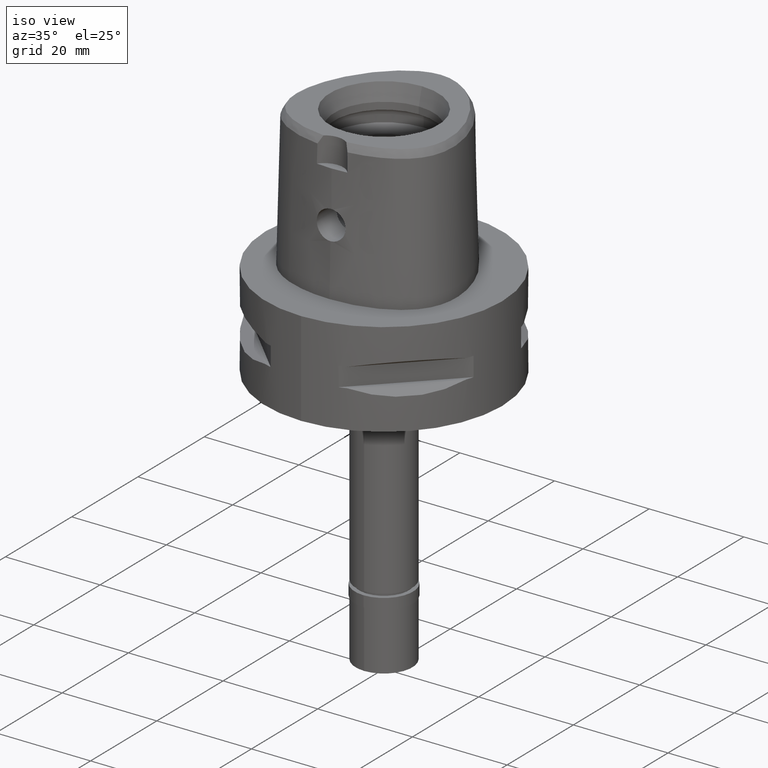
[diagram: clean part render]
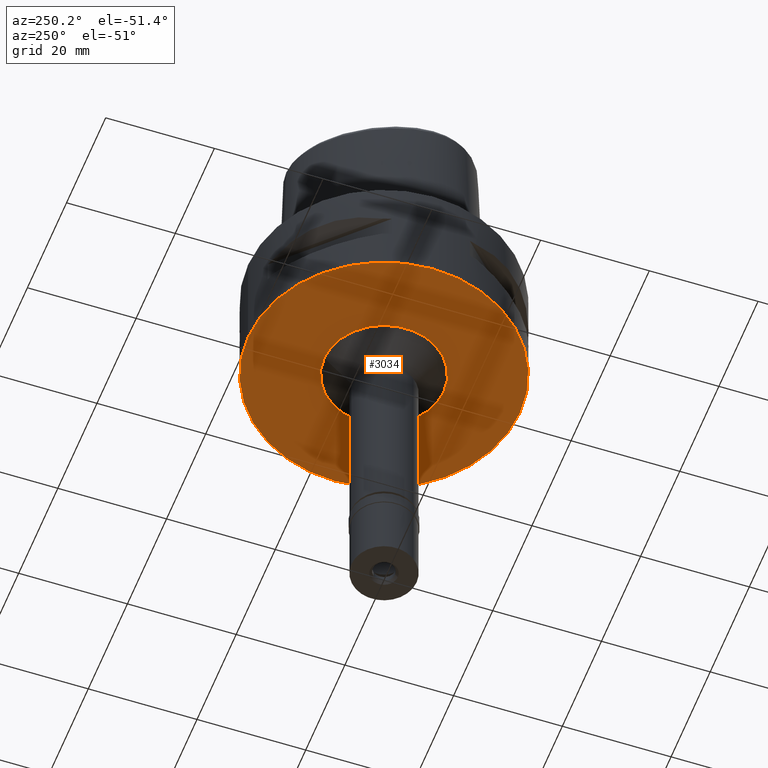
[diagram: tour spotlight — one face highlighted and labeled with its STEP entity id]
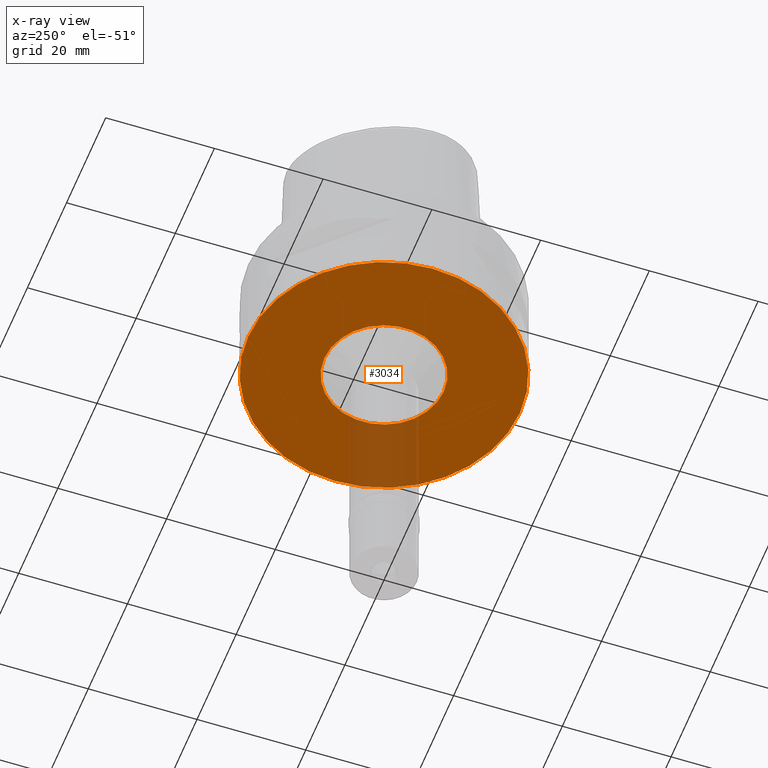
[diagram: x-ray of the same camera — body ghosted, this tour face saturated]
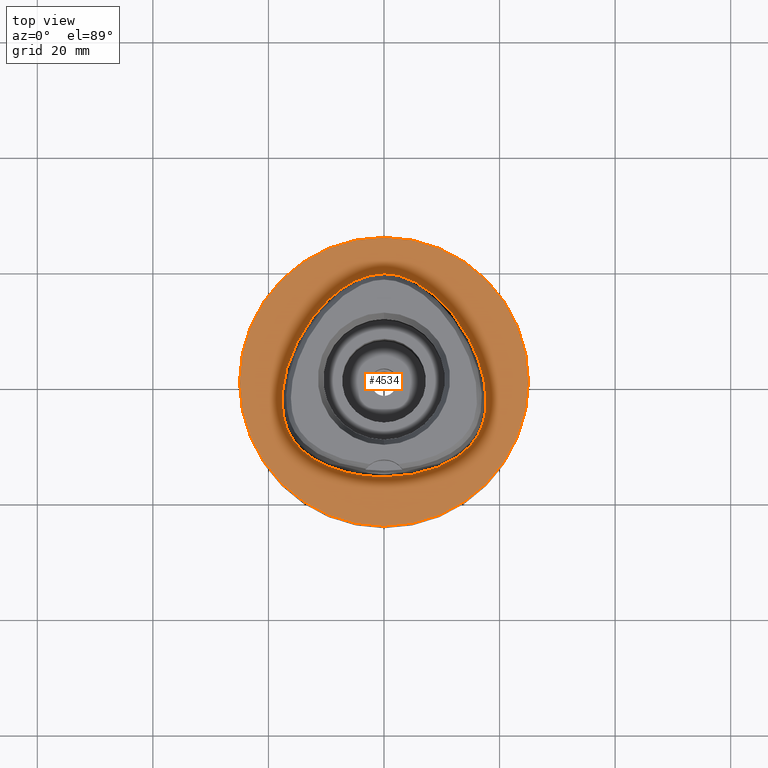
[diagram: tour spotlight — one face highlighted and labeled with its STEP entity id]
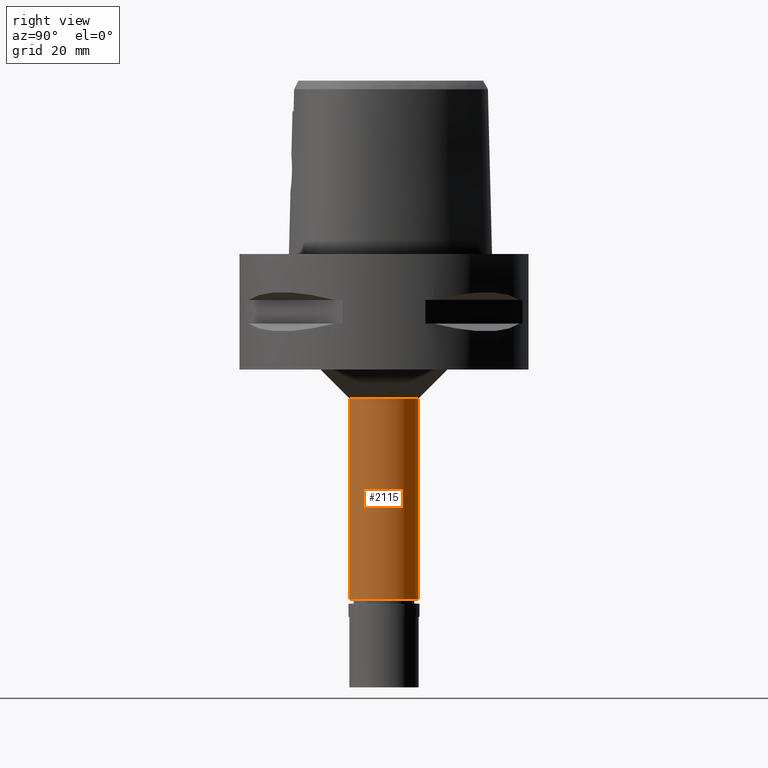
[diagram: tour spotlight — one face highlighted and labeled with its STEP entity id]
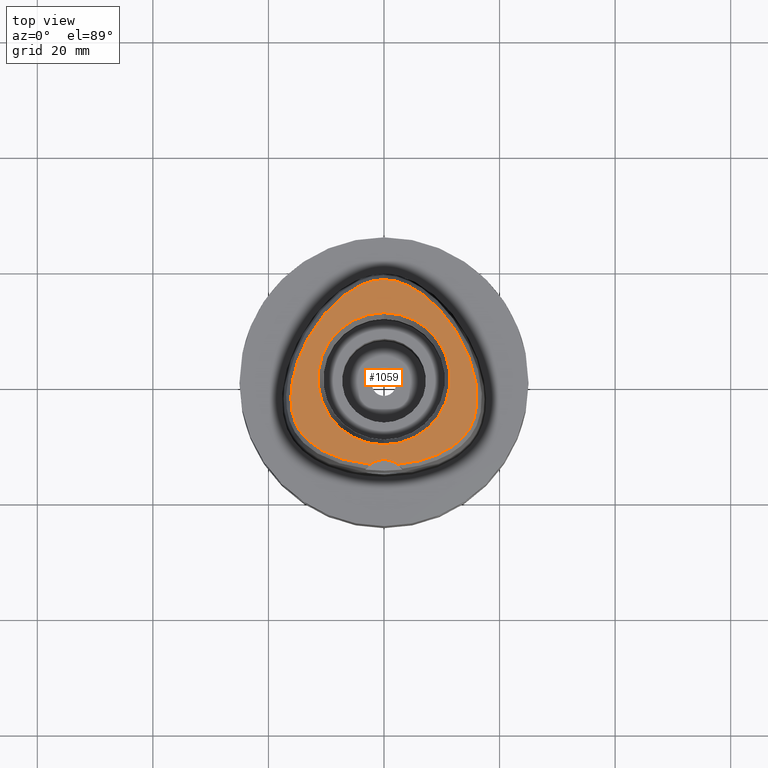
[diagram: tour spotlight — one face highlighted and labeled with its STEP entity id]
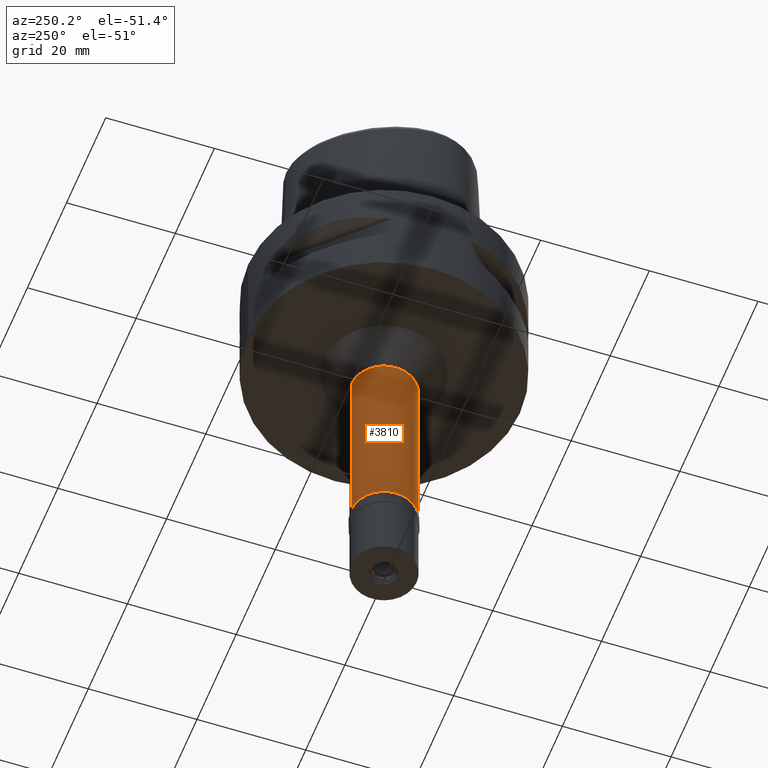
[diagram: tour spotlight — one face highlighted and labeled with its STEP entity id]
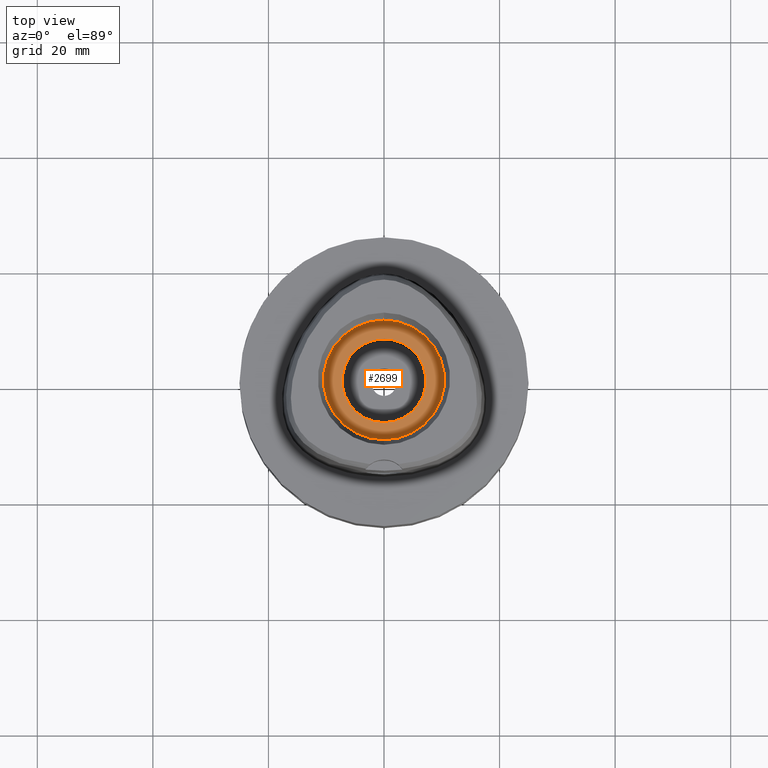
[diagram: tour spotlight — one face highlighted and labeled with its STEP entity id]
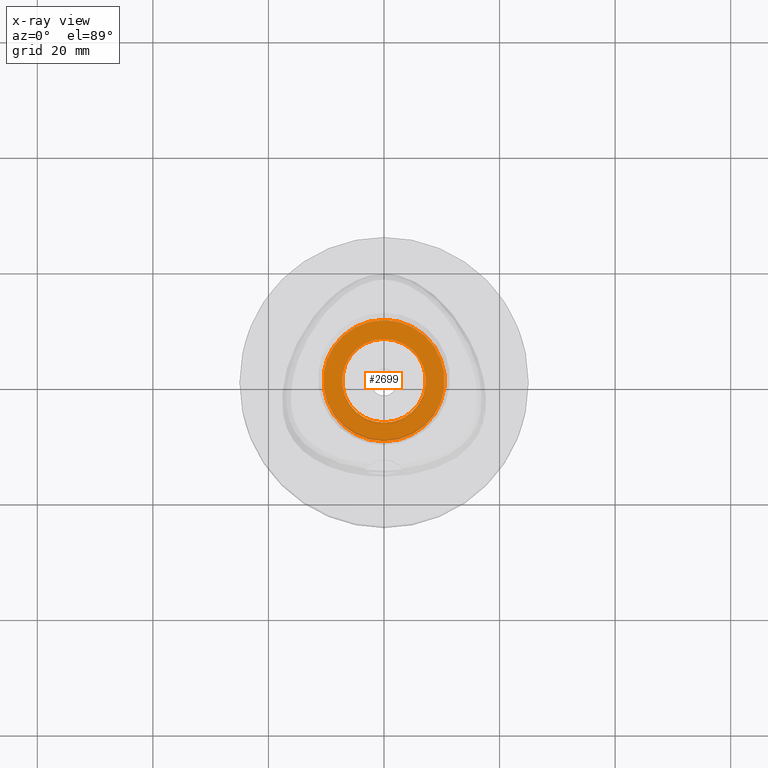
[diagram: x-ray of the same camera — body ghosted, this tour face saturated]
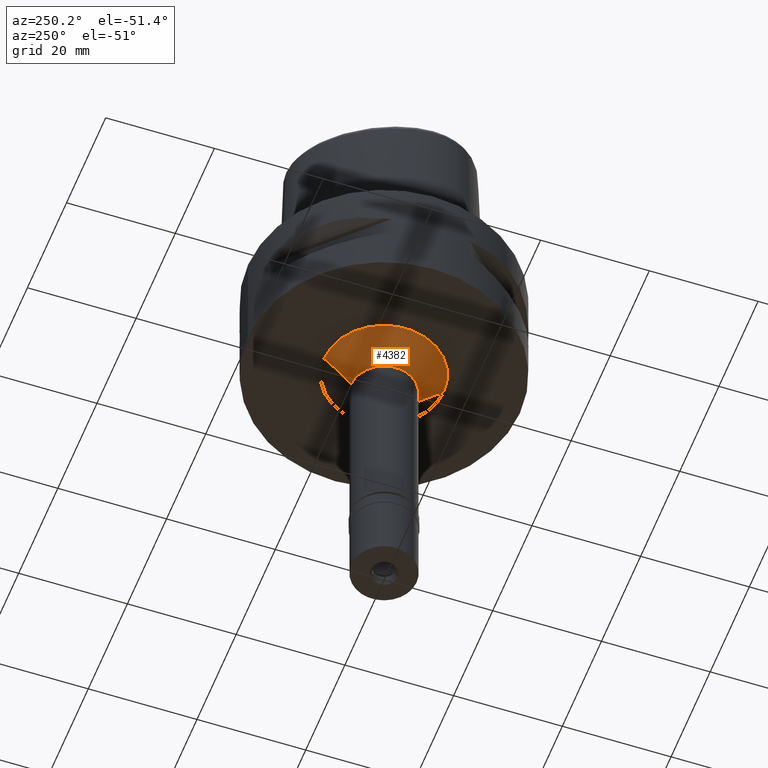
[diagram: tour spotlight — one face highlighted and labeled with its STEP entity id]
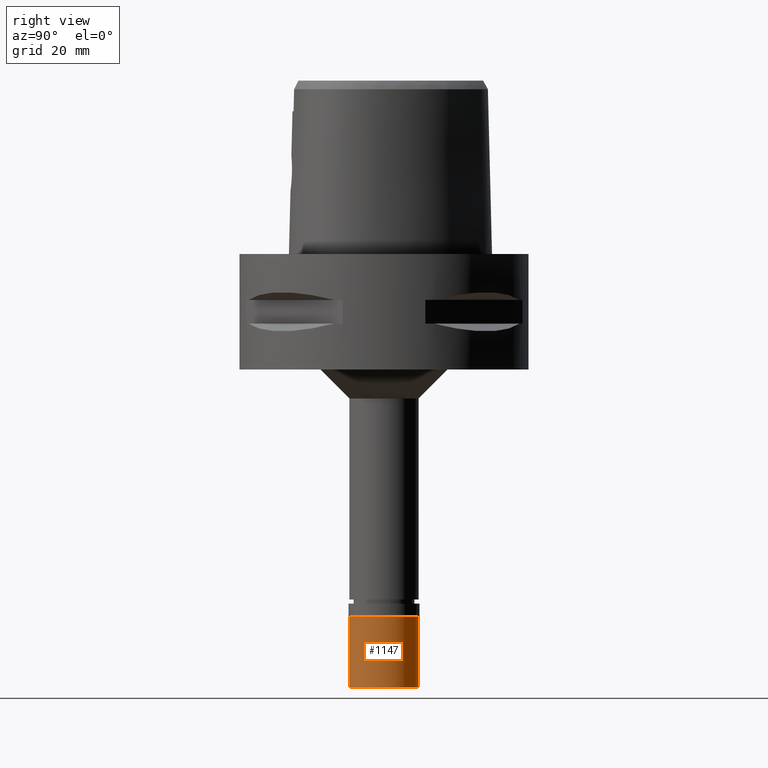
[diagram: tour spotlight — one face highlighted and labeled with its STEP entity id]
A machine part: a face-by-face anatomy tour. The part has 93 B-rep faces; the first image is the clean iso view, then the 8 largest visible faces are spotlighted one at a time (largest first), each with its STEP entity span.

Face 1 — auxiliary view, entity #3034. An x-ray twin of the same camera follows (body ghosted, this face saturated) — the face is partly hidden behind the body. In plain terms, the highlighted planar face has unit normal (0, 0, -1).
Definition (entity closure, byte-faithful):
#127 = CIRCLE ( 'NONE', #1535, 11.00000000000000000 ) ;
#130 = EDGE_LOOP ( 'NONE', ( #605, #3214 ) ) ;
#158 = EDGE_CURVE ( 'NONE', #4801, #262, #821, .T. ) ;
#262 = VERTEX_POINT ( 'NONE', #857 ) ;
#336 = AXIS2_PLACEMENT_3D ( 'NONE', #1143, #2578, #1123 ) ;
#345 = DIRECTION ( 'NONE',  ( 0.0000000000000000000, 0.0000000000000000000, 1.000000000000000000 ) ) ;
#378 = EDGE_CURVE ( 'NONE', #482, #3991, #127, .T. ) ;
#482 = VERTEX_POINT ( 'NONE', #4259 ) ;
#503 = FACE_BOUND ( 'NONE', #130, .T. ) ;
#530 = PLANE ( 'NONE',  #1823 ) ;
#605 = ORIENTED_EDGE ( 'NONE', *, *, #378, .F. ) ;
#821 = CIRCLE ( 'NONE', #1863, 25.00000000000000000 ) ;
#857 = CARTESIAN_POINT ( 'NONE',  ( 0.0000000000000000000, -25.00000000000000000, -20.00000000000000000 ) ) ;
#912 = DIRECTION ( 'NONE',  ( 0.0000000000000000000, 0.0000000000000000000, -1.000000000000000000 ) ) ;
#1063 = CIRCLE ( 'NONE', #1215, 25.00000000000000000 ) ;
#1123 = DIRECTION ( 'NONE',  ( 0.0000000000000000000, -1.000000000000000000, 0.0000000000000000000 ) ) ;
#1143 = CARTESIAN_POINT ( 'NONE',  ( 0.0000000000000000000, 0.0000000000000000000, -20.00000000000000000 ) ) ;
#1215 = AXIS2_PLACEMENT_3D ( 'NONE', #4410, #345, #4461 ) ;
#1285 = FACE_OUTER_BOUND ( 'NONE', #2103, .T. ) ;
#1303 = ORIENTED_EDGE ( 'NONE', *, *, #1938, .F. ) ;
#1509 = DIRECTION ( 'NONE',  ( 0.0000000000000000000, 1.000000000000000000, 0.0000000000000000000 ) ) ;
#1535 = AXIS2_PLACEMENT_3D ( 'NONE', #2378, #3867, #3891 ) ;
#1823 = AXIS2_PLACEMENT_3D ( 'NONE', #2324, #912, #1982 ) ;
#1863 = AXIS2_PLACEMENT_3D ( 'NONE', #3789, #3425, #1509 ) ;
#1905 = CIRCLE ( 'NONE', #336, 11.00000000000000000 ) ;
#1938 = EDGE_CURVE ( 'NONE', #262, #4801, #1063, .T. ) ;
#1982 = DIRECTION ( 'NONE',  ( 0.0000000000000000000, -1.000000000000000000, 0.0000000000000000000 ) ) ;
#2103 = EDGE_LOOP ( 'NONE', ( #2203, #1303 ) ) ;
#2203 = ORIENTED_EDGE ( 'NONE', *, *, #158, .F. ) ;
#2324 = CARTESIAN_POINT ( 'NONE',  ( 0.0000000000000000000, 0.0000000000000000000, -20.00000000000000000 ) ) ;
#2378 = CARTESIAN_POINT ( 'NONE',  ( 0.0000000000000000000, 0.0000000000000000000, -20.00000000000000000 ) ) ;
#2578 = DIRECTION ( 'NONE',  ( 0.0000000000000000000, 0.0000000000000000000, -1.000000000000000000 ) ) ;
#3034 = ADVANCED_FACE ( 'NONE', ( #1285, #503 ), #530, .T. ) ;
#3117 = CARTESIAN_POINT ( 'NONE',  ( 0.0000000000000000000, 25.00000000000000000, -20.00000000000000000 ) ) ;
#3214 = ORIENTED_EDGE ( 'NONE', *, *, #4509, .F. ) ;
#3425 = DIRECTION ( 'NONE',  ( 0.0000000000000000000, 0.0000000000000000000, 1.000000000000000000 ) ) ;
#3789 = CARTESIAN_POINT ( 'NONE',  ( 0.0000000000000000000, 1.268121760516999976E-14, -20.00000000000000000 ) ) ;
#3867 = DIRECTION ( 'NONE',  ( 0.0000000000000000000, 0.0000000000000000000, -1.000000000000000000 ) ) ;
#3891 = DIRECTION ( 'NONE',  ( 0.0000000000000000000, 1.000000000000000000, 0.0000000000000000000 ) ) ;
#3991 = VERTEX_POINT ( 'NONE', #4660 ) ;
#4259 = CARTESIAN_POINT ( 'NONE',  ( 0.0000000000000000000, 11.00000000000000000, -20.00000000000000000 ) ) ;
#4410 = CARTESIAN_POINT ( 'NONE',  ( 0.0000000000000000000, 1.268121760516999976E-14, -20.00000000000000000 ) ) ;
#4461 = DIRECTION ( 'NONE',  ( 0.0000000000000000000, -1.000000000000000000, 0.0000000000000000000 ) ) ;
#4509 = EDGE_CURVE ( 'NONE', #3991, #482, #1905, .T. ) ;
#4660 = CARTESIAN_POINT ( 'NONE',  ( 0.0000000000000000000, -11.00000000000000000, -20.00000000000000000 ) ) ;
#4801 = VERTEX_POINT ( 'NONE', #3117 ) ;

Face 2 — top view, entity #4534. In plain terms, the highlighted planar face has unit normal (0, 0, -1).
Definition (entity closure, byte-faithful):
#41 = FACE_BOUND ( 'NONE', #598, .T. ) ;
#92 = CARTESIAN_POINT ( 'NONE',  ( 14.78833381119667756, -11.28232910838806724, -3.954384767497400727E-07 ) ) ;
#115 = CARTESIAN_POINT ( 'NONE',  ( 7.967839670382651285, 15.83070313284099306, -3.954384658535082392E-07 ) ) ;
#141 = CARTESIAN_POINT ( 'NONE',  ( 8.946741559575423608, -15.03902344684185977, -3.954384767497400727E-07 ) ) ;
#171 = CARTESIAN_POINT ( 'NONE',  ( -11.46563508061945313, 12.45218750032300470, -1.997948017424221179E-08 ) ) ;
#251 = CARTESIAN_POINT ( 'NONE',  ( 9.149224941310999693E-11, 18.69499999997999851, 2.020975979159000139E-13 ) ) ;
#364 = CARTESIAN_POINT ( 'NONE',  ( 0.0000000000000000000, 1.224646799146999965E-14, 0.0000000000000000000 ) ) ;
#439 = DIRECTION ( 'NONE',  ( 0.0000000000000000000, -1.000000000000000000, 0.0000000000000000000 ) ) ;
#486 = CARTESIAN_POINT ( 'NONE',  ( 14.38008120550239788, 8.302343754966635458, -3.954384658535082392E-07 ) ) ;
#589 = CARTESIAN_POINT ( 'NONE',  ( -17.56373942983117686, -5.455996093821116943, -1.997948017424221179E-08 ) ) ;
#598 = EDGE_LOOP ( 'NONE', ( #1294, #3703 ) ) ;
#652 = VERTEX_POINT ( 'NONE', #3675 ) ;
#688 = B_SPLINE_CURVE_WITH_KNOTS ( 'NONE', 3,
 ( #2725, #4215, #4258, #141, #1985, #3452, #92, #4620, #866, #844, #3525, #4559, #3476, #2352, #3842, #486, #2379, #115, #2404, #2330, #3868, #2703 ),
 .UNSPECIFIED., .F., .F.,
 ( 4, 1, 1, 1, 1, 1, 1, 1, 1, 1, 1, 1, 1, 1, 1, 1, 1, 1, 1, 4 ),
 ( 0.0000000000000000000, 0.08333333333362000217, 0.1666666666669000263, 0.2083333333334000115, 0.2500000000000000000, 0.2916666666666999919, 0.3124999999998999689, 0.3333333333332000326, 0.3541666666666000163, 0.3749999999998999689, 0.4166666666665000407, 0.4583333333330000259, 0.4999999999996999622, 0.5833333333328000192, 0.6666666666660999718, 0.7499999999993000044, 0.8333333333325000369, 0.9166666666657999896, 0.9583333333322999747, 1.000000000000000000 ),
 .UNSPECIFIED. ) ;
#747 = CARTESIAN_POINT ( 'NONE',  ( 0.0000000000000000000, 1.268121760516999976E-14, 0.0000000000000000000 ) ) ;
#844 = CARTESIAN_POINT ( 'NONE',  ( 16.66912843045076542, -8.445800785274686362, -3.954384658535082392E-07 ) ) ;
#866 = CARTESIAN_POINT ( 'NONE',  ( 16.20602472821791906, -9.356552739327559820, -3.954384767497400727E-07 ) ) ;
#952 = CARTESIAN_POINT ( 'NONE',  ( -17.16495051829086904, -7.165908203267024490, -1.997948017424221179E-08 ) ) ;
#978 = B_SPLINE_CURVE_WITH_KNOTS ( 'NONE', 3,
 ( #3954, #2034, #3165, #1272, #3530, #171, #1667, #2433, #4603, #3215, #589, #952, #3189, #4676, #2461, #2090, #1346, #2878, #3355, #2628, #3764, #1461 ),
 .UNSPECIFIED., .F., .F.,
 ( 4, 1, 1, 1, 1, 1, 1, 1, 1, 1, 1, 1, 1, 1, 1, 1, 1, 1, 1, 4 ),
 ( 0.0000000000000000000, 0.04166666666846000067, 0.08333333333505001106, 0.1666666666683000175, 0.2500000000013999912, 0.3333333333346000238, 0.4166666666678000008, 0.5000000000009999779, 0.5416666666675999942, 0.5833333333340999793, 0.6250000000008000267, 0.6458333333340000593, 0.6666666666674000430, 0.6875000000005999645, 0.7083333333339000282, 0.7500000000005000445, 0.7916666666671999808, 0.8333333333336999660, 0.9166666666668999985, 1.000000000000000000 ),
 .UNSPECIFIED. ) ;
#1035 = ORIENTED_EDGE ( 'NONE', *, *, #1476, .F. ) ;
#1072 = DIRECTION ( 'NONE',  ( 0.0000000000000000000, 0.0000000000000000000, -1.000000000000000000 ) ) ;
#1098 = PLANE ( 'NONE',  #2998 ) ;
#1142 = AXIS2_PLACEMENT_3D ( 'NONE', #3714, #2886, #4370 ) ;
#1272 = CARTESIAN_POINT ( 'NONE',  ( -4.728927207030408475, 17.73480468795576925, -1.997948017424221179E-08 ) ) ;
#1294 = ORIENTED_EDGE ( 'NONE', *, *, #4447, .F. ) ;
#1346 = CARTESIAN_POINT ( 'NONE',  ( -13.50690093511656187, -12.48264648476968652, -1.997948017424221179E-08 ) ) ;
#1461 = CARTESIAN_POINT ( 'NONE',  ( -2.483279531538000286E-11, -16.45500000000000185, 2.033558506771999855E-13 ) ) ;
#1476 = EDGE_CURVE ( 'NONE', #2067, #4529, #3493, .T. ) ;
#1639 = ORIENTED_EDGE ( 'NONE', *, *, #4456, .F. ) ;
#1667 = CARTESIAN_POINT ( 'NONE',  ( -14.38008119733511769, 8.302343750250026133, -1.997948017424221179E-08 ) ) ;
#1985 = CARTESIAN_POINT ( 'NONE',  ( 11.68694517074214545, -13.70394532111724040, -3.954384658535082392E-07 ) ) ;
#2034 = CARTESIAN_POINT ( 'NONE',  ( -0.6801907858939482132, 18.69500000050583921, -1.997948017424221179E-08 ) ) ;
#2067 = VERTEX_POINT ( 'NONE', #3169 ) ;
#2090 = CARTESIAN_POINT ( 'NONE',  ( -14.78833380436338274, -11.28232910190557270, -1.997948017424221179E-08 ) ) ;
#2330 = CARTESIAN_POINT ( 'NONE',  ( 2.040572359702693461, 18.55015625974149884, -3.954384658535082392E-07 ) ) ;
#2352 = CARTESIAN_POINT ( 'NONE',  ( 17.49754713285658525, -0.2285937482642360630, -3.954384658535082392E-07 ) ) ;
#2379 = CARTESIAN_POINT ( 'NONE',  ( 11.46563508782785235, 12.45218750641535621, -3.954384767497400727E-07 ) ) ;
#2404 = CARTESIAN_POINT ( 'NONE',  ( 4.728927211064490876, 17.73480469653681979, -3.954384767497400727E-07 ) ) ;
#2433 = CARTESIAN_POINT ( 'NONE',  ( -16.51672824827169350, 3.703437500170723151, -1.997948017424221179E-08 ) ) ;
#2461 = CARTESIAN_POINT ( 'NONE',  ( -15.64884224296236503, -10.21298828154690064, -1.997948017424221179E-08 ) ) ;
#2490 = EDGE_CURVE ( 'NONE', #652, #3930, #688, .T. ) ;
#2628 = CARTESIAN_POINT ( 'NONE',  ( -5.051093167661591110, -16.15562500049017203, -1.997948017424221179E-08 ) ) ;
#2703 = CARTESIAN_POINT ( 'NONE',  ( 9.149224941310999693E-11, 18.69499999997999851, 2.020975979159000139E-13 ) ) ;
#2725 = CARTESIAN_POINT ( 'NONE',  ( -2.483279531538000286E-11, -16.45500000000000185, 2.033558506771999855E-13 ) ) ;
#2750 = EDGE_LOOP ( 'NONE', ( #1035, #1639 ) ) ;
#2878 = CARTESIAN_POINT ( 'NONE',  ( -11.68694516608307765, -13.70394531294397211, -1.997948017424221179E-08 ) ) ;
#2886 = DIRECTION ( 'NONE',  ( 0.0000000000000000000, 0.0000000000000000000, -1.000000000000000000 ) ) ;
#2998 = AXIS2_PLACEMENT_3D ( 'NONE', #364, #1072, #4728 ) ;
#3165 = CARTESIAN_POINT ( 'NONE',  ( -2.040572357769602441, 18.55015625048720196, -1.997948017424221179E-08 ) ) ;
#3169 = CARTESIAN_POINT ( 'NONE',  ( 0.0000000000000000000, 25.00000000000000000, 0.0000000000000000000 ) ) ;
#3189 = CARTESIAN_POINT ( 'NONE',  ( -16.66912842185212540, -8.445800781454124717, -1.997948017424221179E-08 ) ) ;
#3215 = CARTESIAN_POINT ( 'NONE',  ( -17.71143735611234860, -3.269218749996877449, -1.997948017424221179E-08 ) ) ;
#3355 = CARTESIAN_POINT ( 'NONE',  ( -8.946741556355959801, -15.03902343797420649, -1.997948017424221179E-08 ) ) ;
#3452 = CARTESIAN_POINT ( 'NONE',  ( 13.50690094092801452, -12.48264649218664601, -3.954384658535082392E-07 ) ) ;
#3476 = CARTESIAN_POINT ( 'NONE',  ( 17.71143736553582215, -3.269218749935726365, -3.954384767497400727E-07 ) ) ;
#3493 = CIRCLE ( 'NONE', #1142, 25.00000000000000000 ) ;
#3525 = CARTESIAN_POINT ( 'NONE',  ( 17.16495052732125970, -7.165908205947775222, -3.954384767497400727E-07 ) ) ;
#3530 = CARTESIAN_POINT ( 'NONE',  ( -7.967839664535606659, 15.83070312539705249, -1.997948017424221179E-08 ) ) ;
#3675 = CARTESIAN_POINT ( 'NONE',  ( -2.483279531538000286E-11, -16.45500000000000185, 2.033558506771999855E-13 ) ) ;
#3703 = ORIENTED_EDGE ( 'NONE', *, *, #2490, .F. ) ;
#3714 = CARTESIAN_POINT ( 'NONE',  ( 0.0000000000000000000, 1.268121760516999976E-14, 0.0000000000000000000 ) ) ;
#3720 = CARTESIAN_POINT ( 'NONE',  ( 0.0000000000000000000, -25.00000000000000000, 0.0000000000000000000 ) ) ;
#3764 = CARTESIAN_POINT ( 'NONE',  ( -1.683697722558151755, -16.45500000049819178, -1.997948017424221179E-08 ) ) ;
#3842 = CARTESIAN_POINT ( 'NONE',  ( 16.51672825715687409, 3.703437503374748641, -3.954384658535082392E-07 ) ) ;
#3868 = CARTESIAN_POINT ( 'NONE',  ( 0.6801907865816626542, 18.69500000988268340, -3.954384754071264651E-07 ) ) ;
#3930 = VERTEX_POINT ( 'NONE', #251 ) ;
#3954 = CARTESIAN_POINT ( 'NONE',  ( 9.149224941310999693E-11, 18.69499999997999851, 2.020975979159000139E-13 ) ) ;
#4016 = AXIS2_PLACEMENT_3D ( 'NONE', #747, #4458, #439 ) ;
#4215 = CARTESIAN_POINT ( 'NONE',  ( 1.683697723102135502, -16.45500000988928946, -3.954384756893295734E-07 ) ) ;
#4258 = CARTESIAN_POINT ( 'NONE',  ( 5.051093169325697296, -16.15562500978778715, -3.954384658535082392E-07 ) ) ;
#4370 = DIRECTION ( 'NONE',  ( 0.0000000000000000000, 1.000000000000000000, 0.0000000000000000000 ) ) ;
#4447 = EDGE_CURVE ( 'NONE', #3930, #652, #978, .T. ) ;
#4456 = EDGE_CURVE ( 'NONE', #4529, #2067, #4487, .T. ) ;
#4458 = DIRECTION ( 'NONE',  ( 0.0000000000000000000, 0.0000000000000000000, -1.000000000000000000 ) ) ;
#4487 = CIRCLE ( 'NONE', #4016, 25.00000000000000000 ) ;
#4503 = FACE_OUTER_BOUND ( 'NONE', #2750, .T. ) ;
#4529 = VERTEX_POINT ( 'NONE', #3720 ) ;
#4534 = ADVANCED_FACE ( 'NONE', ( #4503, #41 ), #1098, .F. ) ;
#4559 = CARTESIAN_POINT ( 'NONE',  ( 17.56373943916372227, -5.455996095156280035, -3.954384658535082392E-07 ) ) ;
#4603 = CARTESIAN_POINT ( 'NONE',  ( -17.49754712356641662, -0.2285937499122741579, -1.997948017424221179E-08 ) ) ;
#4620 = CARTESIAN_POINT ( 'NONE',  ( 15.64884225056901990, -10.21298828707561235, -3.954384658535082392E-07 ) ) ;
#4676 = CARTESIAN_POINT ( 'NONE',  ( -16.20602472006970274, -9.356552734624793644, -1.997948017424221179E-08 ) ) ;
#4728 = DIRECTION ( 'NONE',  ( 0.0000000000000000000, -1.000000000000000000, 0.0000000000000000000 ) ) ;

Face 3 — right view, entity #2115. In plain terms, the highlighted cylindrical surface (edge-blend (fillet) strip) has radius 6 mm, axis along (0, 0, -1).
Definition (entity closure, byte-faithful):
#308 = ORIENTED_EDGE ( 'NONE', *, *, #1231, .T. ) ;
#339 = VERTEX_POINT ( 'NONE', #2063 ) ;
#389 = CARTESIAN_POINT ( 'NONE',  ( 0.0000000000000000000, 6.000000000000000000, -25.00000000000000000 ) ) ;
#541 = DIRECTION ( 'NONE',  ( 0.0000000000000000000, -1.000000000000000000, 0.0000000000000000000 ) ) ;
#579 = EDGE_CURVE ( 'NONE', #2961, #339, #825, .T. ) ;
#825 = CIRCLE ( 'NONE', #1698, 6.000000000000000000 ) ;
#1031 = EDGE_LOOP ( 'NONE', ( #1561, #4726, #308, #3933 ) ) ;
#1073 = DIRECTION ( 'NONE',  ( 0.0000000000000000000, 0.0000000000000000000, -1.000000000000000000 ) ) ;
#1149 = EDGE_CURVE ( 'NONE', #2961, #2170, #4057, .T. ) ;
#1225 = DIRECTION ( 'NONE',  ( 0.0000000000000000000, 0.0000000000000000000, -1.000000000000000000 ) ) ;
#1231 = EDGE_CURVE ( 'NONE', #2391, #2170, #3649, .T. ) ;
#1439 = LINE ( 'NONE', #1845, #4393 ) ;
#1561 = ORIENTED_EDGE ( 'NONE', *, *, #579, .T. ) ;
#1698 = AXIS2_PLACEMENT_3D ( 'NONE', #3869, #3282, #4155 ) ;
#1845 = CARTESIAN_POINT ( 'NONE',  ( 0.0000000000000000000, -6.000000000000000000, -25.00000000000000000 ) ) ;
#2063 = CARTESIAN_POINT ( 'NONE',  ( 0.0000000000000000000, -6.000000000000000000, -25.00000000000000000 ) ) ;
#2115 = ADVANCED_FACE ( 'NONE', ( #3901 ), #4586, .T. ) ;
#2170 = VERTEX_POINT ( 'NONE', #3852 ) ;
#2391 = VERTEX_POINT ( 'NONE', #2993 ) ;
#2397 = VECTOR ( 'NONE', #4755, 1000.000000000000000 ) ;
#2437 = CARTESIAN_POINT ( 'NONE',  ( 0.0000000000000000000, 1.268121760516999976E-14, 3.550000000000000266 ) ) ;
#2616 = AXIS2_PLACEMENT_3D ( 'NONE', #2437, #1225, #541 ) ;
#2961 = VERTEX_POINT ( 'NONE', #389 ) ;
#2977 = EDGE_CURVE ( 'NONE', #339, #2391, #1439, .T. ) ;
#2993 = CARTESIAN_POINT ( 'NONE',  ( 0.0000000000000000000, -6.000000000000000000, -59.79999999999999716 ) ) ;
#3018 = AXIS2_PLACEMENT_3D ( 'NONE', #3191, #4679, #3956 ) ;
#3191 = CARTESIAN_POINT ( 'NONE',  ( 0.0000000000000000000, 1.268121760516999976E-14, -59.79999999999999716 ) ) ;
#3265 = CARTESIAN_POINT ( 'NONE',  ( 0.0000000000000000000, 6.000000000000000000, -25.00000000000000000 ) ) ;
#3282 = DIRECTION ( 'NONE',  ( 0.0000000000000000000, 0.0000000000000000000, -1.000000000000000000 ) ) ;
#3649 = CIRCLE ( 'NONE', #3018, 6.000000000000000000 ) ;
#3852 = CARTESIAN_POINT ( 'NONE',  ( 0.0000000000000000000, 6.000000000000000000, -59.79999999999999716 ) ) ;
#3869 = CARTESIAN_POINT ( 'NONE',  ( 0.0000000000000000000, 0.0000000000000000000, -25.00000000000000000 ) ) ;
#3901 = FACE_OUTER_BOUND ( 'NONE', #1031, .T. ) ;
#3933 = ORIENTED_EDGE ( 'NONE', *, *, #1149, .F. ) ;
#3956 = DIRECTION ( 'NONE',  ( 0.0000000000000000000, -1.000000000000000000, 0.0000000000000000000 ) ) ;
#4057 = LINE ( 'NONE', #3265, #2397 ) ;
#4155 = DIRECTION ( 'NONE',  ( 0.0000000000000000000, 1.000000000000000000, 0.0000000000000000000 ) ) ;
#4393 = VECTOR ( 'NONE', #1073, 1000.000000000000000 ) ;
#4586 = CYLINDRICAL_SURFACE ( 'NONE', #2616, 6.000000000000000000 ) ;
#4679 = DIRECTION ( 'NONE',  ( 0.0000000000000000000, 0.0000000000000000000, 1.000000000000000000 ) ) ;
#4726 = ORIENTED_EDGE ( 'NONE', *, *, #2977, .T. ) ;
#4755 = DIRECTION ( 'NONE',  ( 0.0000000000000000000, 0.0000000000000000000, -1.000000000000000000 ) ) ;

Face 4 — top view, entity #1059. In plain terms, the highlighted planar face has unit normal (0, 0, 1).
Definition (entity closure, byte-faithful):
#19 = CIRCLE ( 'NONE', #4097, 4.000000000000000888 ) ;
#29 = CARTESIAN_POINT ( 'NONE',  ( 11.36765809995352505, -12.04801986072696707, 30.00000000000312639 ) ) ;
#51 = CARTESIAN_POINT ( 'NONE',  ( 15.29323375805460117, -7.718923543002548016, 30.00000000000013856 ) ) ;
#72 = CARTESIAN_POINT ( 'NONE',  ( 9.420872132873729043, 12.20574557692420647, 30.00000000000720490 ) ) ;
#96 = CARTESIAN_POINT ( 'NONE',  ( 9.755668685252119943, -12.92551394023250921, 30.00000000000319744 ) ) ;
#122 = CARTESIAN_POINT ( 'NONE',  ( 14.55828366953115705, 4.114142377745225509, 30.00000000000266454 ) ) ;
#185 = CARTESIAN_POINT ( 'NONE',  ( -9.420854217684404119, 12.20577134109497486, 29.99999999999504396 ) ) ;
#210 = CARTESIAN_POINT ( 'NONE',  ( -16.08550869466934330, -4.376322360226213348, 30.00000000000092726 ) ) ;
#254 = CIRCLE ( 'NONE', #3855, 11.43758326592000074 ) ;
#298 = ORIENTED_EDGE ( 'NONE', *, *, #386, .F. ) ;
#377 = CARTESIAN_POINT ( 'NONE',  ( 0.0000000000000000000, -11.43758326592000074, 30.00000000000000000 ) ) ;
#386 = EDGE_CURVE ( 'NONE', #3551, #4311, #1192, .T. ) ;
#399 = CARTESIAN_POINT ( 'NONE',  ( 2.538962679605123895, -14.79292722369513235, 30.00000000000949285 ) ) ;
#427 = CARTESIAN_POINT ( 'NONE',  ( 15.68929135223632798, 0.4919393172820468174, 30.00000000000170175 ) ) ;
#449 = CARTESIAN_POINT ( 'NONE',  ( 15.51702143705464998, -7.148634146068665984, 30.00000000000195044 ) ) ;
#467 = CARTESIAN_POINT ( 'NONE',  ( 14.01089202938309697, 5.377385268370920457, 30.00000000000238032 ) ) ;
#492 = CARTESIAN_POINT ( 'NONE',  ( 10.27891984617708232, 11.24296481357245803, 30.00000000000057909 ) ) ;
#505 = CARTESIAN_POINT ( 'NONE',  ( -3.123276563984411336, -14.73562494724896332, 30.00000000000137490 ) ) ;
#508 = CARTESIAN_POINT ( 'NONE',  ( -0.5679008307149101542, 17.14013367087451556, 29.99999999999934985 ) ) ;
#538 = DIRECTION ( 'NONE',  ( 0.0000000000000000000, 1.000000000000000000, 0.0000000000000000000 ) ) ;
#557 = CARTESIAN_POINT ( 'NONE',  ( -10.27907733181908512, 11.24278573582384944, 29.99999999999005595 ) ) ;
#583 = CARTESIAN_POINT ( 'NONE',  ( -9.750168658358797202, -12.92810664733774395, 29.99999999999974065 ) ) ;
#585 = CARTESIAN_POINT ( 'NONE',  ( -7.700642921100591565, 13.84415306341681884, 29.99999999999863576 ) ) ;
#607 = CARTESIAN_POINT ( 'NONE',  ( -2.411640998824980286, 16.81591728051114032, 29.99999999999739941 ) ) ;
#615 = FACE_OUTER_BOUND ( 'NONE', #3946, .T. ) ;
#640 = ORIENTED_EDGE ( 'NONE', *, *, #4210, .F. ) ;
#757 = CARTESIAN_POINT ( 'NONE',  ( 1.774127352510728839, 16.97169788998495576, 30.00000000000059686 ) ) ;
#803 = CARTESIAN_POINT ( 'NONE',  ( 15.90185233182582536, -0.6139199331565691198, 29.99999999999724309 ) ) ;
#826 = CARTESIAN_POINT ( 'NONE',  ( 14.44767169632926418, -9.224476417584888566, 30.00000000000139622 ) ) ;
#846 = CARTESIAN_POINT ( 'NONE',  ( 2.412811123804935232, 16.81558681049257231, 30.00000000000935785 ) ) ;
#887 = CARTESIAN_POINT ( 'NONE',  ( -2.535517866335988302, -14.79323888261822439, 29.99999999999904077 ) ) ;
#890 = CARTESIAN_POINT ( 'NONE',  ( -8.556928701964659822, 13.07433695898526693, 30.00000000000046185 ) ) ;
#914 = CARTESIAN_POINT ( 'NONE',  ( -11.11900396222782739, 10.19116357425899366, 29.99999999999820588 ) ) ;
#943 = CARTESIAN_POINT ( 'NONE',  ( -7.776737509122965797, -13.71663015822122667, 30.00000000000407852 ) ) ;
#955 = CARTESIAN_POINT ( 'NONE',  ( 0.0000000000000000000, 0.0000000000000000000, 30.00000000000000000 ) ) ;
#971 = CARTESIAN_POINT ( 'NONE',  ( -13.18915979441887565, -10.65722997876878608, 29.99999999999608491 ) ) ;
#973 = CARTESIAN_POINT ( 'NONE',  ( -6.862723739079807928, 14.51536572208420672, 30.00000000000309441 ) ) ;
#1059 = ADVANCED_FACE ( 'NONE', ( #615, #2561 ), #1321, .T. ) ;
#1121 = ORIENTED_EDGE ( 'NONE', *, *, #4351, .F. ) ;
#1133 = CARTESIAN_POINT ( 'NONE',  ( 6.863227115065147821, 14.51498137220580453, 29.99999999999972999 ) ) ;
#1170 = CARTESIAN_POINT ( 'NONE',  ( 0.0000000000000000000, -18.00000000000000000, 30.00000000000000000 ) ) ;
#1172 = CARTESIAN_POINT ( 'NONE',  ( 7.700998872105635051, 13.84384558891570904, 30.00000000000877165 ) ) ;
#1192 = B_SPLINE_CURVE_WITH_KNOTS ( 'NONE', 3,
 ( #3795, #887, #505, #2402, #3037, #4532, #943, #3947, #583, #4332, #2082, #4670, #2427, #971, #3916, #4302, #3160, #4644, #3182, #1313, #2455, #1683, #3578, #1337, #210, #3209, #2845, #1287, #2793, #2816, #1712, #4691, #2478, #1661, #4280, #2054, #3552, #914, #557, #185, #890, #585, #973, #3893, #1663, #1290, #2796, #3162, #607, #4282, #2105, #508, #2818, #4723 ),
 .UNSPECIFIED., .F., .F.,
 ( 4, 1, 1, 1, 1, 1, 1, 1, 1, 1, 1, 1, 1, 1, 1, 1, 1, 1, 1, 1, 1, 1, 1, 1, 1, 1, 1, 1, 1, 1, 1, 1, 1, 1, 1, 1, 1, 1, 1, 1, 1, 1, 1, 1, 1, 1, 1, 1, 1, 1, 1, 4 ),
 ( 0.0000000000000000000, 0.005566907331700066131, 0.02545556918509994659, 0.04534423103860008020, 0.06523289289190004059, 0.08512155474529992105, 0.1050102165987000236, 0.1248988784521999351, 0.1447875403055000065, 0.1646762021588999980, 0.1845648640122999895, 0.2044535258655999499, 0.2243421877191000835, 0.2442308495724999640, 0.2641195114257999244, 0.2840081732792000269, 0.3038968351325999073, 0.3237854969860000098, 0.3436741588394000013, 0.3635628206927999928, 0.3834514825461999843, 0.4033401443995000557, 0.4232288062529999673, 0.4431174681064000698, 0.4630061299597000302, 0.4828947918130999106, 0.5027834536666000442, 0.5226721155199000046, 0.5425607773732999961, 0.5624494392267000986, 0.5823381010799999480, 0.6022267629334999706, 0.6221154247869000731, 0.6420040866403000646, 0.6618927484936000250, 0.6817814103470000164, 0.7016700722005000390, 0.7215587340537999994, 0.7414473959071999909, 0.7613360577605999824, 0.7812247196139999739, 0.8011133814673999654, 0.8210020433207999568, 0.8408907051741000283, 0.8607793670275000197, 0.8806680288810000423, 0.9005566907343299787, 0.9204453525877199782, 0.9403340144411099777, 0.9602226762944999772, 0.9801113381478899766, 1.000000000000000000 ),
 .UNSPECIFIED. ) ;
#1221 = CARTESIAN_POINT ( 'NONE',  ( 3.130495111450138701, -14.73481892792065473, 30.00000000000745004 ) ) ;
#1287 = CARTESIAN_POINT ( 'NONE',  ( -16.04083576397475852, -1.656498942828992682, 29.99999999999473133 ) ) ;
#1290 = CARTESIAN_POINT ( 'NONE',  ( -4.498660734198344002, 15.99814720005820767, 29.99999999999869971 ) ) ;
#1296 = CARTESIAN_POINT ( 'NONE',  ( 0.0000000000000000000, 1.570614979474999723E-14, 30.00000000000000000 ) ) ;
#1313 = CARTESIAN_POINT ( 'NONE',  ( -15.29229544369668758, -7.721097396977326888, 29.99999999998976108 ) ) ;
#1321 = PLANE ( 'NONE',  #3256 ) ;
#1337 = CARTESIAN_POINT ( 'NONE',  ( -15.99949242929705306, -5.153835065648810776, 30.00000000000128964 ) ) ;
#1520 = CARTESIAN_POINT ( 'NONE',  ( 15.87349190488159678, -5.869792298898159011, 30.00000000000084910 ) ) ;
#1534 = DIRECTION ( 'NONE',  ( 0.0000000000000000000, -1.000000000000000000, 0.0000000000000000000 ) ) ;
#1545 = CARTESIAN_POINT ( 'NONE',  ( 13.19176257967279753, -10.65479018522470511, 30.00000000000483169 ) ) ;
#1567 = CARTESIAN_POINT ( 'NONE',  ( 14.08238499151729251, -9.704590128437788010, 29.99999999999631584 ) ) ;
#1592 = CARTESIAN_POINT ( 'NONE',  ( 6.658132732488531325, -14.05774790739147306, 30.00000000000367351 ) ) ;
#1617 = CARTESIAN_POINT ( 'NONE',  ( 11.11868440496114729, 10.19157821280286491, 29.99999999999988631 ) ) ;
#1661 = CARTESIAN_POINT ( 'NONE',  ( -14.01158736113475989, 5.375902008631216589, 29.99999999999225508 ) ) ;
#1663 = CARTESIAN_POINT ( 'NONE',  ( -5.257871200567610259, 15.58649213537279365, 30.00000000000070344 ) ) ;
#1683 = CARTESIAN_POINT ( 'NONE',  ( -15.71065119879248861, -6.536303815289661756, 29.99999999999054623 ) ) ;
#1710 = EDGE_LOOP ( 'NONE', ( #4389, #1121 ) ) ;
#1712 = CARTESIAN_POINT ( 'NONE',  ( -15.39727819201294423, 1.655076005305240461, 30.00000000000008171 ) ) ;
#1848 = ORIENTED_EDGE ( 'NONE', *, *, #2332, .F. ) ;
#1924 = CARTESIAN_POINT ( 'NONE',  ( 13.38374903490313450, 6.636915464740235748, 30.00000000000613909 ) ) ;
#1951 = CARTESIAN_POINT ( 'NONE',  ( 0.0000000000000000000, 11.43758326592000074, 30.00000000000000000 ) ) ;
#1965 = CARTESIAN_POINT ( 'NONE',  ( 3.772905803807103275, 16.33508552419380422, 30.00000000000476419 ) ) ;
#1988 = CARTESIAN_POINT ( 'NONE',  ( 11.92667412982212305, 9.061218325781851490, 29.99999999999724309 ) ) ;
#2054 = CARTESIAN_POINT ( 'NONE',  ( -12.68647747557120908, 7.869569494475526561, 29.99999999999737099 ) ) ;
#2062 = CARTESIAN_POINT ( 'NONE',  ( 2.406543924163999648, -14.80491841401999942, 30.00000000000000000 ) ) ;
#2082 = CARTESIAN_POINT ( 'NONE',  ( -11.36350786442240945, -12.05063008428595772, 29.99999999999426592 ) ) ;
#2105 = CARTESIAN_POINT ( 'NONE',  ( -1.160151454488572487, 17.07862209883076687, 29.99999999999663913 ) ) ;
#2116 = CARTESIAN_POINT ( 'NONE',  ( -2.406542353497000075, -14.80491723099000012, 30.00000000000000000 ) ) ;
#2240 = DIRECTION ( 'NONE',  ( 0.6016359810410799591, 0.7987703964949736113, 0.0000000000000000000 ) ) ;
#2265 = CARTESIAN_POINT ( 'NONE',  ( 15.71128456932076922, -6.534031654962817015, 30.00000000000648015 ) ) ;
#2285 = CARTESIAN_POINT ( 'NONE',  ( 15.04259016984194020, -8.247723288182342571, 30.00000000000673950 ) ) ;
#2332 = EDGE_CURVE ( 'NONE', #4383, #3551, #19, .T. ) ;
#2333 = CARTESIAN_POINT ( 'NONE',  ( 14.76450668991109616, -8.742560395149464370, 30.00000000000025224 ) ) ;
#2362 = CIRCLE ( 'NONE', #3765, 11.43758326592000074 ) ;
#2402 = CARTESIAN_POINT ( 'NONE',  ( -4.150496093830525979, -14.59917355179894649, 30.00000000000056133 ) ) ;
#2427 = CARTESIAN_POINT ( 'NONE',  ( -12.65209017756193965, -11.12734424253546450, 29.99999999999976552 ) ) ;
#2455 = CARTESIAN_POINT ( 'NONE',  ( -15.51623783590795291, -7.150856098906022140, 29.99999999999563371 ) ) ;
#2478 = CARTESIAN_POINT ( 'NONE',  ( -14.55898035934198909, 4.112421202110860818, 29.99999999999583622 ) ) ;
#2508 = DIRECTION ( 'NONE',  ( 1.000000000000000000, 0.0000000000000000000, 0.0000000000000000000 ) ) ;
#2561 = FACE_BOUND ( 'NONE', #1710, .T. ) ;
#2639 = CARTESIAN_POINT ( 'NONE',  ( 0.1912597614439517923, 17.15328888648393502, 30.00000000000339284 ) ) ;
#2659 = CARTESIAN_POINT ( 'NONE',  ( 15.39668103801774457, 1.657188505494163966, 29.99999999999893774 ) ) ;
#2683 = CARTESIAN_POINT ( 'NONE',  ( 16.12546998862585923, -3.533461825553543267, 30.00000000000946798 ) ) ;
#2705 = CARTESIAN_POINT ( 'NONE',  ( 4.499552315895293475, 15.99769543814628925, 29.99999999999950973 ) ) ;
#2777 = DIRECTION ( 'NONE',  ( 0.0000000000000000000, 0.0000000000000000000, 1.000000000000000000 ) ) ;
#2793 = CARTESIAN_POINT ( 'NONE',  ( -15.90223487643802791, -0.6162487013688002779, 29.99999999999454303 ) ) ;
#2796 = CARTESIAN_POINT ( 'NONE',  ( -3.771910472264452530, 16.33551310926392830, 29.99999999998960831 ) ) ;
#2801 = EDGE_CURVE ( 'NONE', #4163, #3248, #2362, .T. ) ;
#2816 = CARTESIAN_POINT ( 'NONE',  ( -15.68979199461307061, 0.4896967076515691408, 29.99999999999590372 ) ) ;
#2818 = CARTESIAN_POINT ( 'NONE',  ( -0.1909045559979831996, 17.15328888648182115, 30.00000000000018119 ) ) ;
#2845 = CARTESIAN_POINT ( 'NONE',  ( -16.11283982316178154, -2.629907404753797806, 29.99999999999849010 ) ) ;
#2851 = B_SPLINE_CURVE_WITH_KNOTS ( 'NONE', 3,
 ( #3059, #2639, #3848, #3019, #757, #846, #3482, #1965, #2705, #3823, #3434, #1133, #1172, #4194, #72, #492, #1617, #1988, #3108, #1924, #467, #122, #4147, #2659, #427, #803, #4130, #3413, #2683, #4218, #3457, #1520, #2265, #449, #51, #2285, #2333, #826, #1567, #4171, #1545, #4563, #3040, #29, #3392, #96, #3801, #3777, #1592, #3754, #4583, #1221, #399, #4515 ),
 .UNSPECIFIED., .F., .F.,
 ( 4, 1, 1, 1, 1, 1, 1, 1, 1, 1, 1, 1, 1, 1, 1, 1, 1, 1, 1, 1, 1, 1, 1, 1, 1, 1, 1, 1, 1, 1, 1, 1, 1, 1, 1, 1, 1, 1, 1, 1, 1, 1, 1, 1, 1, 1, 1, 1, 1, 1, 1, 4 ),
 ( 0.0000000000000000000, 0.01988587058640001182, 0.03977174117009996124, 0.05965761175399997285, 0.07954348233780006439, 0.09942935292160004490, 0.1193152235055000565, 0.1392010940893000370, 0.1590869646731999376, 0.1789728352568999981, 0.1988587058408000097, 0.2187445764247000213, 0.2386304470083999707, 0.2585163175922999823, 0.2784021881761000738, 0.2982880587598999433, 0.3181739293438000660, 0.3380597999276000465, 0.3579456705113999160, 0.3778315410952000075, 0.3977174116791000191, 0.4176032822630000307, 0.4374891528466999802, 0.4573750234305999918, 0.4772608940143999723, 0.4971467645981999528, 0.5170326351820999644, 0.5369185057659000559, 0.5568043763497000365, 0.5766902469335999371, 0.5965761175174000286, 0.6164619881012000091, 0.6363478586849999896, 0.6562337292689000012, 0.6761195998528000128, 0.6960054704364999623, 0.7158913410203999739, 0.7357772116042000654, 0.7556630821880000459, 0.7755489527718999465, 0.7954348233557000381, 0.8153206939395000186, 0.8352065645232999991, 0.8550924351072000107, 0.8749783056909999912, 0.8948641762747999717, 0.9147500468586799993, 0.9346359174424899718, 0.9545217880263200394, 0.9744076586101599879, 0.9942935291939859477, 1.000000000000000000 ),
 .UNSPECIFIED. ) ;
#3010 = DIRECTION ( 'NONE',  ( 0.0000000000000000000, 0.0000000000000000000, 1.000000000000000000 ) ) ;
#3019 = CARTESIAN_POINT ( 'NONE',  ( 1.161482229273773203, 17.07843133415003223, 30.00000000000436273 ) ) ;
#3037 = CARTESIAN_POINT ( 'NONE',  ( -5.437876102061184547, -14.35707869330859054, 30.00000000000263611 ) ) ;
#3040 = CARTESIAN_POINT ( 'NONE',  ( 12.04928217775975341, -11.59002493206867612, 30.00000000000095213 ) ) ;
#3059 = CARTESIAN_POINT ( 'NONE',  ( -6.301949014319000032E-11, 17.15328888647999861, 30.00000000000000000 ) ) ;
#3108 = CARTESIAN_POINT ( 'NONE',  ( 12.68590586676461740, 7.870511070824518285, 30.00000000000486011 ) ) ;
#3160 = CARTESIAN_POINT ( 'NONE',  ( -14.44611813752641893, -9.226676124712433591, 29.99999999998939160 ) ) ;
#3162 = CARTESIAN_POINT ( 'NONE',  ( -3.077178008231387984, 16.60571267457864053, 30.00000000000128964 ) ) ;
#3182 = CARTESIAN_POINT ( 'NONE',  ( -15.04149970408309223, -8.249836848500521569, 29.99999999999993605 ) ) ;
#3209 = CARTESIAN_POINT ( 'NONE',  ( -16.12543283909113256, -3.535877041748430649, 29.99999999999853983 ) ) ;
#3248 = VERTEX_POINT ( 'NONE', #1951 ) ;
#3256 = AXIS2_PLACEMENT_3D ( 'NONE', #955, #4730, #2508 ) ;
#3331 = CARTESIAN_POINT ( 'NONE',  ( 0.0000000000000000000, 1.570614979474999723E-14, 30.00000000000000000 ) ) ;
#3392 = CARTESIAN_POINT ( 'NONE',  ( 10.60500548643904395, -12.49469941439557097, 29.99999999999549871 ) ) ;
#3413 = CARTESIAN_POINT ( 'NONE',  ( 16.11273027396554980, -2.627494158581534123, 30.00000000000123279 ) ) ;
#3434 = CARTESIAN_POINT ( 'NONE',  ( 6.048015628560347245, 15.09357031580075237, 30.00000000000433431 ) ) ;
#3457 = CARTESIAN_POINT ( 'NONE',  ( 15.99982784345586140, -5.151471542954197069, 29.99999999999970868 ) ) ;
#3482 = CARTESIAN_POINT ( 'NONE',  ( 3.078265684543100456, 16.60532678262864081, 30.00000000000403588 ) ) ;
#3551 = VERTEX_POINT ( 'NONE', #2116 ) ;
#3552 = CARTESIAN_POINT ( 'NONE',  ( -11.92713521269492283, 9.060544494662932991, 29.99999999999736744 ) ) ;
#3578 = CARTESIAN_POINT ( 'NONE',  ( -15.87300767660384793, -5.872112237378931177, 30.00000000000066436 ) ) ;
#3754 = CARTESIAN_POINT ( 'NONE',  ( 5.446614459517148177, -14.35518554872738228, 30.00000000000792610 ) ) ;
#3765 = AXIS2_PLACEMENT_3D ( 'NONE', #3331, #3010, #1534 ) ;
#3777 = CARTESIAN_POINT ( 'NONE',  ( 7.783816186092827216, -13.71424622167461749, 30.00000000000833822 ) ) ;
#3795 = CARTESIAN_POINT ( 'NONE',  ( -2.406542353497000075, -14.80491723099000012, 30.00000000000000000 ) ) ;
#3796 = DIRECTION ( 'NONE',  ( 0.0000000000000000000, 0.0000000000000000000, 1.000000000000000000 ) ) ;
#3801 = CARTESIAN_POINT ( 'NONE',  ( 8.816245487876464892, -13.33426548781763543, 30.00000000000388667 ) ) ;
#3823 = CARTESIAN_POINT ( 'NONE',  ( 5.258649622038634952, 15.58603480843043698, 30.00000000000499512 ) ) ;
#3848 = CARTESIAN_POINT ( 'NONE',  ( 0.5691917915716131482, 17.14006060249500152, 30.00000000000925482 ) ) ;
#3855 = AXIS2_PLACEMENT_3D ( 'NONE', #1296, #2777, #538 ) ;
#3893 = CARTESIAN_POINT ( 'NONE',  ( -6.047371482395221598, 15.09400374235290343, 30.00000000000095213 ) ) ;
#3916 = CARTESIAN_POINT ( 'NONE',  ( -13.66338899148929187, -10.18351204678886290, 29.99999999999923617 ) ) ;
#3946 = EDGE_LOOP ( 'NONE', ( #640, #298, #1848 ) ) ;
#3947 = CARTESIAN_POINT ( 'NONE',  ( -8.809985523415296171, -13.33678107331190787, 29.99999999999470290 ) ) ;
#4097 = AXIS2_PLACEMENT_3D ( 'NONE', #1170, #3796, #2240 ) ;
#4130 = CARTESIAN_POINT ( 'NONE',  ( 16.04058509948983158, -1.654113685488675989, 30.00000000000039080 ) ) ;
#4147 = CARTESIAN_POINT ( 'NONE',  ( 15.02033012161961700, 2.869071121501561628, 30.00000000000851941 ) ) ;
#4163 = VERTEX_POINT ( 'NONE', #377 ) ;
#4171 = CARTESIAN_POINT ( 'NONE',  ( 13.66559393374891584, -10.18115111193556110, 30.00000000000214229 ) ) ;
#4194 = CARTESIAN_POINT ( 'NONE',  ( 8.557117433366524750, 13.07415149353064088, 30.00000000000856204 ) ) ;
#4210 = EDGE_CURVE ( 'NONE', #4311, #4383, #2851, .T. ) ;
#4218 = CARTESIAN_POINT ( 'NONE',  ( 16.08569500454974133, -4.373922630229516884, 29.99999999999990763 ) ) ;
#4280 = CARTESIAN_POINT ( 'NONE',  ( -13.38439869301878282, 6.635703175839537948, 29.99999999999813127 ) ) ;
#4282 = CARTESIAN_POINT ( 'NONE',  ( -1.772880577021968218, 16.97196055715992102, 29.99999999999775824 ) ) ;
#4302 = CARTESIAN_POINT ( 'NONE',  ( -14.08052509618497972, -9.706873108417777729, 29.99999999999324274 ) ) ;
#4311 = VERTEX_POINT ( 'NONE', #4338 ) ;
#4332 = CARTESIAN_POINT ( 'NONE',  ( -10.60021164902527957, -12.49731984708702370, 29.99999999999084821 ) ) ;
#4338 = CARTESIAN_POINT ( 'NONE',  ( -6.301949014319000032E-11, 17.15328888647999861, 30.00000000000000000 ) ) ;
#4351 = EDGE_CURVE ( 'NONE', #3248, #4163, #254, .T. ) ;
#4383 = VERTEX_POINT ( 'NONE', #2062 ) ;
#4389 = ORIENTED_EDGE ( 'NONE', *, *, #2801, .F. ) ;
#4515 = CARTESIAN_POINT ( 'NONE',  ( 2.406543924163999648, -14.80491841401999942, 30.00000000000000000 ) ) ;
#4532 = CARTESIAN_POINT ( 'NONE',  ( -6.650243356160530084, -14.05992414833179183, 30.00000000000051514 ) ) ;
#4563 = CARTESIAN_POINT ( 'NONE',  ( 12.65514534657066292, -11.12483370674190475, 30.00000000000740386 ) ) ;
#4583 = CARTESIAN_POINT ( 'NONE',  ( 4.159771979225106442, -14.59766906204198378, 30.00000000000338574 ) ) ;
#4644 = CARTESIAN_POINT ( 'NONE',  ( -14.76322153899404199, -8.744676018998658762, 29.99999999999952038 ) ) ;
#4670 = CARTESIAN_POINT ( 'NONE',  ( -12.04571048960038659, -11.59259605427430273, 30.00000000000306954 ) ) ;
#4691 = CARTESIAN_POINT ( 'NONE',  ( -15.02099409651022555, 2.867135356160181114, 30.00000000000077094 ) ) ;
#4723 = CARTESIAN_POINT ( 'NONE',  ( -6.301949014319000032E-11, 17.15328888647999861, 30.00000000000000000 ) ) ;
#4730 = DIRECTION ( 'NONE',  ( 0.0000000000000000000, 0.0000000000000000000, 1.000000000000000000 ) ) ;

Face 5 — auxiliary view, entity #3810. In plain terms, the highlighted cylindrical surface (edge-blend (fillet) strip) has radius 6 mm, axis along (0, 0, -1).
Definition (entity closure, byte-faithful):
#12 = AXIS2_PLACEMENT_3D ( 'NONE', #3389, #3017, #4146 ) ;
#69 = FACE_OUTER_BOUND ( 'NONE', #2088, .T. ) ;
#179 = CARTESIAN_POINT ( 'NONE',  ( 0.0000000000000000000, 1.268121760516999976E-14, -59.79999999999999716 ) ) ;
#339 = VERTEX_POINT ( 'NONE', #2063 ) ;
#389 = CARTESIAN_POINT ( 'NONE',  ( 0.0000000000000000000, 6.000000000000000000, -25.00000000000000000 ) ) ;
#436 = CARTESIAN_POINT ( 'NONE',  ( 0.0000000000000000000, 0.0000000000000000000, -25.00000000000000000 ) ) ;
#677 = EDGE_CURVE ( 'NONE', #339, #2961, #3809, .T. ) ;
#967 = EDGE_CURVE ( 'NONE', #2170, #2391, #4191, .T. ) ;
#998 = ORIENTED_EDGE ( 'NONE', *, *, #2977, .F. ) ;
#1073 = DIRECTION ( 'NONE',  ( 0.0000000000000000000, 0.0000000000000000000, -1.000000000000000000 ) ) ;
#1149 = EDGE_CURVE ( 'NONE', #2961, #2170, #4057, .T. ) ;
#1289 = AXIS2_PLACEMENT_3D ( 'NONE', #179, #3469, #4547 ) ;
#1439 = LINE ( 'NONE', #1845, #4393 ) ;
#1845 = CARTESIAN_POINT ( 'NONE',  ( 0.0000000000000000000, -6.000000000000000000, -25.00000000000000000 ) ) ;
#2063 = CARTESIAN_POINT ( 'NONE',  ( 0.0000000000000000000, -6.000000000000000000, -25.00000000000000000 ) ) ;
#2088 = EDGE_LOOP ( 'NONE', ( #3479, #998, #4279, #3648 ) ) ;
#2095 = AXIS2_PLACEMENT_3D ( 'NONE', #436, #4050, #3787 ) ;
#2170 = VERTEX_POINT ( 'NONE', #3852 ) ;
#2391 = VERTEX_POINT ( 'NONE', #2993 ) ;
#2397 = VECTOR ( 'NONE', #4755, 1000.000000000000000 ) ;
#2961 = VERTEX_POINT ( 'NONE', #389 ) ;
#2977 = EDGE_CURVE ( 'NONE', #339, #2391, #1439, .T. ) ;
#2993 = CARTESIAN_POINT ( 'NONE',  ( 0.0000000000000000000, -6.000000000000000000, -59.79999999999999716 ) ) ;
#3017 = DIRECTION ( 'NONE',  ( 0.0000000000000000000, 0.0000000000000000000, -1.000000000000000000 ) ) ;
#3265 = CARTESIAN_POINT ( 'NONE',  ( 0.0000000000000000000, 6.000000000000000000, -25.00000000000000000 ) ) ;
#3389 = CARTESIAN_POINT ( 'NONE',  ( 0.0000000000000000000, 1.268121760516999976E-14, 3.550000000000000266 ) ) ;
#3469 = DIRECTION ( 'NONE',  ( 0.0000000000000000000, 0.0000000000000000000, 1.000000000000000000 ) ) ;
#3479 = ORIENTED_EDGE ( 'NONE', *, *, #967, .T. ) ;
#3648 = ORIENTED_EDGE ( 'NONE', *, *, #1149, .T. ) ;
#3787 = DIRECTION ( 'NONE',  ( 0.0000000000000000000, -1.000000000000000000, 0.0000000000000000000 ) ) ;
#3809 = CIRCLE ( 'NONE', #2095, 6.000000000000000000 ) ;
#3810 = ADVANCED_FACE ( 'NONE', ( #69 ), #4467, .T. ) ;
#3852 = CARTESIAN_POINT ( 'NONE',  ( 0.0000000000000000000, 6.000000000000000000, -59.79999999999999716 ) ) ;
#4050 = DIRECTION ( 'NONE',  ( 0.0000000000000000000, 0.0000000000000000000, -1.000000000000000000 ) ) ;
#4057 = LINE ( 'NONE', #3265, #2397 ) ;
#4146 = DIRECTION ( 'NONE',  ( 0.0000000000000000000, -1.000000000000000000, 0.0000000000000000000 ) ) ;
#4191 = CIRCLE ( 'NONE', #1289, 6.000000000000000000 ) ;
#4279 = ORIENTED_EDGE ( 'NONE', *, *, #677, .T. ) ;
#4393 = VECTOR ( 'NONE', #1073, 1000.000000000000000 ) ;
#4467 = CYLINDRICAL_SURFACE ( 'NONE', #12, 6.000000000000000000 ) ;
#4547 = DIRECTION ( 'NONE',  ( 0.0000000000000000000, 1.000000000000000000, 0.0000000000000000000 ) ) ;
#4755 = DIRECTION ( 'NONE',  ( 0.0000000000000000000, 0.0000000000000000000, -1.000000000000000000 ) ) ;

Face 6 — top view, entity #2699. An x-ray twin of the same camera follows (body ghosted, this face saturated) — the face is partly hidden behind the body. In plain terms, the highlighted planar face has unit normal (0, 0, -1).
Definition (entity closure, byte-faithful):
#1 = DIRECTION ( 'NONE',  ( 0.0000000000000000000, 0.0000000000000000000, 1.000000000000000000 ) ) ;
#329 = DIRECTION ( 'NONE',  ( 0.0000000000000000000, 0.0000000000000000000, -1.000000000000000000 ) ) ;
#332 = CIRCLE ( 'NONE', #4482, 7.250000000000000000 ) ;
#736 = EDGE_CURVE ( 'NONE', #3268, #2557, #3723, .T. ) ;
#904 = VERTEX_POINT ( 'NONE', #2024 ) ;
#970 = ORIENTED_EDGE ( 'NONE', *, *, #736, .F. ) ;
#992 = VERTEX_POINT ( 'NONE', #3097 ) ;
#995 = DIRECTION ( 'NONE',  ( 0.0000000000000000000, 1.000000000000000000, 0.0000000000000000000 ) ) ;
#1010 = CARTESIAN_POINT ( 'NONE',  ( 0.0000000000000000000, 1.610410540878999754E-14, 10.00000000000000000 ) ) ;
#1048 = FACE_BOUND ( 'NONE', #1615, .T. ) ;
#1396 = ORIENTED_EDGE ( 'NONE', *, *, #1445, .F. ) ;
#1445 = EDGE_CURVE ( 'NONE', #2557, #3268, #1685, .T. ) ;
#1453 = AXIS2_PLACEMENT_3D ( 'NONE', #1010, #329, #2515 ) ;
#1615 = EDGE_LOOP ( 'NONE', ( #4759, #3478 ) ) ;
#1682 = AXIS2_PLACEMENT_3D ( 'NONE', #2668, #3050, #995 ) ;
#1685 = CIRCLE ( 'NONE', #1453, 10.50000000000000000 ) ;
#2024 = CARTESIAN_POINT ( 'NONE',  ( 0.0000000000000000000, 7.250000000000000000, 10.00000000000000000 ) ) ;
#2293 = EDGE_CURVE ( 'NONE', #992, #904, #2997, .T. ) ;
#2479 = DIRECTION ( 'NONE',  ( 0.0000000000000000000, 0.0000000000000000000, -1.000000000000000000 ) ) ;
#2500 = DIRECTION ( 'NONE',  ( 0.0000000000000000000, -1.000000000000000000, 0.0000000000000000000 ) ) ;
#2515 = DIRECTION ( 'NONE',  ( 0.0000000000000000000, -1.000000000000000000, 0.0000000000000000000 ) ) ;
#2557 = VERTEX_POINT ( 'NONE', #3503 ) ;
#2668 = CARTESIAN_POINT ( 'NONE',  ( 0.0000000000000000000, 1.610410540878999754E-14, 10.00000000000000000 ) ) ;
#2699 = ADVANCED_FACE ( 'NONE', ( #3948, #1048 ), #4722, .F. ) ;
#2708 = DIRECTION ( 'NONE',  ( 0.0000000000000000000, 0.0000000000000000000, 1.000000000000000000 ) ) ;
#2997 = CIRCLE ( 'NONE', #4246, 7.250000000000000000 ) ;
#3015 = CARTESIAN_POINT ( 'NONE',  ( 0.0000000000000000000, 1.610410540878999754E-14, 10.00000000000000000 ) ) ;
#3050 = DIRECTION ( 'NONE',  ( 0.0000000000000000000, 0.0000000000000000000, -1.000000000000000000 ) ) ;
#3064 = CARTESIAN_POINT ( 'NONE',  ( 0.0000000000000000000, 10.50000000000000000, 10.00000000000000000 ) ) ;
#3097 = CARTESIAN_POINT ( 'NONE',  ( 0.0000000000000000000, -7.250000000000000000, 10.00000000000000000 ) ) ;
#3202 = EDGE_CURVE ( 'NONE', #904, #992, #332, .T. ) ;
#3268 = VERTEX_POINT ( 'NONE', #3064 ) ;
#3478 = ORIENTED_EDGE ( 'NONE', *, *, #3202, .F. ) ;
#3503 = CARTESIAN_POINT ( 'NONE',  ( 0.0000000000000000000, -10.50000000000000000, 10.00000000000000000 ) ) ;
#3723 = CIRCLE ( 'NONE', #1682, 10.50000000000000000 ) ;
#3804 = CARTESIAN_POINT ( 'NONE',  ( 0.0000000000000000000, 1.610410540878999754E-14, 10.00000000000000000 ) ) ;
#3817 = EDGE_LOOP ( 'NONE', ( #1396, #970 ) ) ;
#3948 = FACE_OUTER_BOUND ( 'NONE', #3817, .T. ) ;
#4246 = AXIS2_PLACEMENT_3D ( 'NONE', #3015, #1, #4512 ) ;
#4474 = AXIS2_PLACEMENT_3D ( 'NONE', #4671, #2479, #2500 ) ;
#4482 = AXIS2_PLACEMENT_3D ( 'NONE', #3804, #2708, #4497 ) ;
#4497 = DIRECTION ( 'NONE',  ( 0.0000000000000000000, 1.000000000000000000, 0.0000000000000000000 ) ) ;
#4512 = DIRECTION ( 'NONE',  ( 0.0000000000000000000, -1.000000000000000000, 0.0000000000000000000 ) ) ;
#4671 = CARTESIAN_POINT ( 'NONE',  ( 0.0000000000000000000, 1.347111479061999855E-14, 10.00000000000000000 ) ) ;
#4722 = PLANE ( 'NONE',  #4474 ) ;
#4759 = ORIENTED_EDGE ( 'NONE', *, *, #2293, .F. ) ;

Face 7 — auxiliary view, entity #4382. In plain terms, the highlighted conical surface has half-angle 45 deg.
Definition (entity closure, byte-faithful):
#253 = VECTOR ( 'NONE', #1671, 1000.000000000000114 ) ;
#336 = AXIS2_PLACEMENT_3D ( 'NONE', #1143, #2578, #1123 ) ;
#339 = VERTEX_POINT ( 'NONE', #2063 ) ;
#389 = CARTESIAN_POINT ( 'NONE',  ( 0.0000000000000000000, 6.000000000000000000, -25.00000000000000000 ) ) ;
#436 = CARTESIAN_POINT ( 'NONE',  ( 0.0000000000000000000, 0.0000000000000000000, -25.00000000000000000 ) ) ;
#482 = VERTEX_POINT ( 'NONE', #4259 ) ;
#677 = EDGE_CURVE ( 'NONE', #339, #2961, #3809, .T. ) ;
#1123 = DIRECTION ( 'NONE',  ( 0.0000000000000000000, -1.000000000000000000, 0.0000000000000000000 ) ) ;
#1143 = CARTESIAN_POINT ( 'NONE',  ( 0.0000000000000000000, 0.0000000000000000000, -20.00000000000000000 ) ) ;
#1188 = AXIS2_PLACEMENT_3D ( 'NONE', #3507, #3608, #1641 ) ;
#1345 = VECTOR ( 'NONE', #3983, 1000.000000000000114 ) ;
#1620 = ORIENTED_EDGE ( 'NONE', *, *, #4509, .T. ) ;
#1641 = DIRECTION ( 'NONE',  ( 0.0000000000000000000, 1.000000000000000000, 0.0000000000000000000 ) ) ;
#1671 = DIRECTION ( 'NONE',  ( 0.0000000000000000000, 0.7071067811865474617, -0.7071067811865474617 ) ) ;
#1905 = CIRCLE ( 'NONE', #336, 11.00000000000000000 ) ;
#1993 = LINE ( 'NONE', #2387, #253 ) ;
#2063 = CARTESIAN_POINT ( 'NONE',  ( 0.0000000000000000000, -6.000000000000000000, -25.00000000000000000 ) ) ;
#2095 = AXIS2_PLACEMENT_3D ( 'NONE', #436, #4050, #3787 ) ;
#2124 = EDGE_CURVE ( 'NONE', #3991, #339, #1993, .T. ) ;
#2235 = EDGE_CURVE ( 'NONE', #482, #2961, #4416, .T. ) ;
#2387 = CARTESIAN_POINT ( 'NONE',  ( 0.0000000000000000000, -11.00000000000000000, -20.00000000000000000 ) ) ;
#2475 = EDGE_LOOP ( 'NONE', ( #3450, #3673, #1620, #4328 ) ) ;
#2578 = DIRECTION ( 'NONE',  ( 0.0000000000000000000, 0.0000000000000000000, -1.000000000000000000 ) ) ;
#2961 = VERTEX_POINT ( 'NONE', #389 ) ;
#3450 = ORIENTED_EDGE ( 'NONE', *, *, #677, .F. ) ;
#3507 = CARTESIAN_POINT ( 'NONE',  ( 0.0000000000000000000, 0.0000000000000000000, -22.50000000000000000 ) ) ;
#3608 = DIRECTION ( 'NONE',  ( 0.0000000000000000000, 0.0000000000000000000, 1.000000000000000000 ) ) ;
#3673 = ORIENTED_EDGE ( 'NONE', *, *, #2124, .F. ) ;
#3683 = CARTESIAN_POINT ( 'NONE',  ( 0.0000000000000000000, 11.00000000000000000, -20.00000000000000000 ) ) ;
#3701 = CONICAL_SURFACE ( 'NONE', #1188, 8.500000000000000000, 0.7853981633972997312 ) ;
#3787 = DIRECTION ( 'NONE',  ( 0.0000000000000000000, -1.000000000000000000, 0.0000000000000000000 ) ) ;
#3809 = CIRCLE ( 'NONE', #2095, 6.000000000000000000 ) ;
#3983 = DIRECTION ( 'NONE',  ( 0.0000000000000000000, -0.7071067811865474617, -0.7071067811865474617 ) ) ;
#3991 = VERTEX_POINT ( 'NONE', #4660 ) ;
#4050 = DIRECTION ( 'NONE',  ( 0.0000000000000000000, 0.0000000000000000000, -1.000000000000000000 ) ) ;
#4259 = CARTESIAN_POINT ( 'NONE',  ( 0.0000000000000000000, 11.00000000000000000, -20.00000000000000000 ) ) ;
#4286 = FACE_OUTER_BOUND ( 'NONE', #2475, .T. ) ;
#4328 = ORIENTED_EDGE ( 'NONE', *, *, #2235, .T. ) ;
#4382 = ADVANCED_FACE ( 'NONE', ( #4286 ), #3701, .T. ) ;
#4416 = LINE ( 'NONE', #3683, #1345 ) ;
#4509 = EDGE_CURVE ( 'NONE', #3991, #482, #1905, .T. ) ;
#4660 = CARTESIAN_POINT ( 'NONE',  ( 0.0000000000000000000, -11.00000000000000000, -20.00000000000000000 ) ) ;

Face 8 — right view, entity #1147. In plain terms, the highlighted cylindrical surface (edge-blend (fillet) strip) has radius 6 mm, axis along (0, 0, 1).
Definition (entity closure, byte-faithful):
#240 = CARTESIAN_POINT ( 'NONE',  ( 0.0000000000000000000, 0.0000000000000000000, -15.22500000000000142 ) ) ;
#270 = CYLINDRICAL_SURFACE ( 'NONE', #4657, 6.000000000000000000 ) ;
#295 = DIRECTION ( 'NONE',  ( 0.0000000000000000000, 1.000000000000000000, 0.0000000000000000000 ) ) ;
#477 = CARTESIAN_POINT ( 'NONE',  ( 0.0000000000000000000, -6.000000000000000000, -2.299999999999999822 ) ) ;
#512 = AXIS2_PLACEMENT_3D ( 'NONE', #700, #4075, #2234 ) ;
#611 = EDGE_CURVE ( 'NONE', #1759, #2258, #1459, .T. ) ;
#627 = DIRECTION ( 'NONE',  ( 0.0000000000000000000, 1.000000000000000000, 0.0000000000000000000 ) ) ;
#679 = DIRECTION ( 'NONE',  ( 0.0000000000000000000, 0.0000000000000000000, -1.000000000000000000 ) ) ;
#700 = CARTESIAN_POINT ( 'NONE',  ( 0.0000000000000000000, 0.0000000000000000000, -14.50000000000000000 ) ) ;
#927 = EDGE_CURVE ( 'NONE', #2258, #1800, #2419, .T. ) ;
#1055 = CARTESIAN_POINT ( 'NONE',  ( 0.0000000000000000000, -6.000000000000000000, -2.299999999999999822 ) ) ;
#1076 = CARTESIAN_POINT ( 'NONE',  ( 0.0000000000000000000, -6.000000000000000000, -14.50000000000000000 ) ) ;
#1147 = ADVANCED_FACE ( 'NONE', ( #2092 ), #270, .T. ) ;
#1369 = ORIENTED_EDGE ( 'NONE', *, *, #1837, .T. ) ;
#1372 = VECTOR ( 'NONE', #1677, 1000.000000000000000 ) ;
#1459 = CIRCLE ( 'NONE', #2325, 6.000000000000000000 ) ;
#1613 = CARTESIAN_POINT ( 'NONE',  ( 0.0000000000000000000, 6.000000000000000000, -2.299999999999999822 ) ) ;
#1677 = DIRECTION ( 'NONE',  ( 0.0000000000000000000, 0.0000000000000000000, -1.000000000000000000 ) ) ;
#1759 = VERTEX_POINT ( 'NONE', #4696 ) ;
#1774 = DIRECTION ( 'NONE',  ( 0.0000000000000000000, 0.0000000000000000000, 1.000000000000000000 ) ) ;
#1799 = EDGE_LOOP ( 'NONE', ( #2923, #4371, #1369, #1987 ) ) ;
#1800 = VERTEX_POINT ( 'NONE', #1076 ) ;
#1837 = EDGE_CURVE ( 'NONE', #1800, #4454, #2084, .T. ) ;
#1987 = ORIENTED_EDGE ( 'NONE', *, *, #2549, .F. ) ;
#2084 = CIRCLE ( 'NONE', #512, 6.000000000000000000 ) ;
#2092 = FACE_OUTER_BOUND ( 'NONE', #1799, .T. ) ;
#2160 = CARTESIAN_POINT ( 'NONE',  ( 0.0000000000000000000, 0.0000000000000000000, -2.299999999999999822 ) ) ;
#2234 = DIRECTION ( 'NONE',  ( 0.0000000000000000000, -1.000000000000000000, 0.0000000000000000000 ) ) ;
#2258 = VERTEX_POINT ( 'NONE', #1055 ) ;
#2325 = AXIS2_PLACEMENT_3D ( 'NONE', #2160, #679, #627 ) ;
#2419 = LINE ( 'NONE', #477, #1372 ) ;
#2549 = EDGE_CURVE ( 'NONE', #1759, #4454, #4281, .T. ) ;
#2606 = VECTOR ( 'NONE', #4645, 1000.000000000000000 ) ;
#2923 = ORIENTED_EDGE ( 'NONE', *, *, #611, .T. ) ;
#2963 = CARTESIAN_POINT ( 'NONE',  ( 0.0000000000000000000, 6.000000000000000000, -14.50000000000000000 ) ) ;
#4075 = DIRECTION ( 'NONE',  ( 0.0000000000000000000, 0.0000000000000000000, 1.000000000000000000 ) ) ;
#4281 = LINE ( 'NONE', #1613, #2606 ) ;
#4371 = ORIENTED_EDGE ( 'NONE', *, *, #927, .T. ) ;
#4454 = VERTEX_POINT ( 'NONE', #2963 ) ;
#4645 = DIRECTION ( 'NONE',  ( 0.0000000000000000000, 0.0000000000000000000, -1.000000000000000000 ) ) ;
#4657 = AXIS2_PLACEMENT_3D ( 'NONE', #240, #1774, #295 ) ;
#4696 = CARTESIAN_POINT ( 'NONE',  ( 0.0000000000000000000, 6.000000000000000000, -2.299999999999999822 ) ) ;